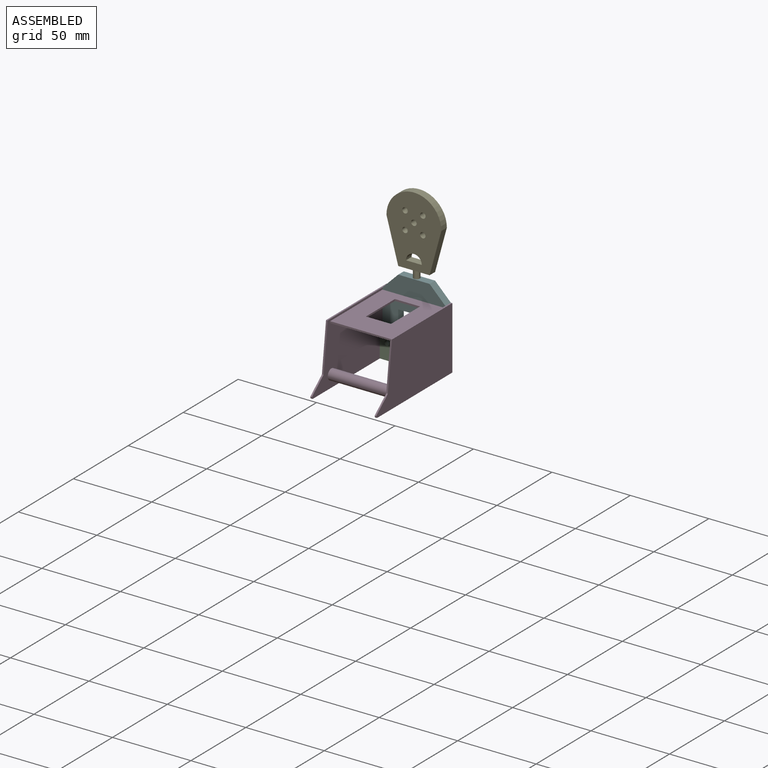
[diagram: assembled view]
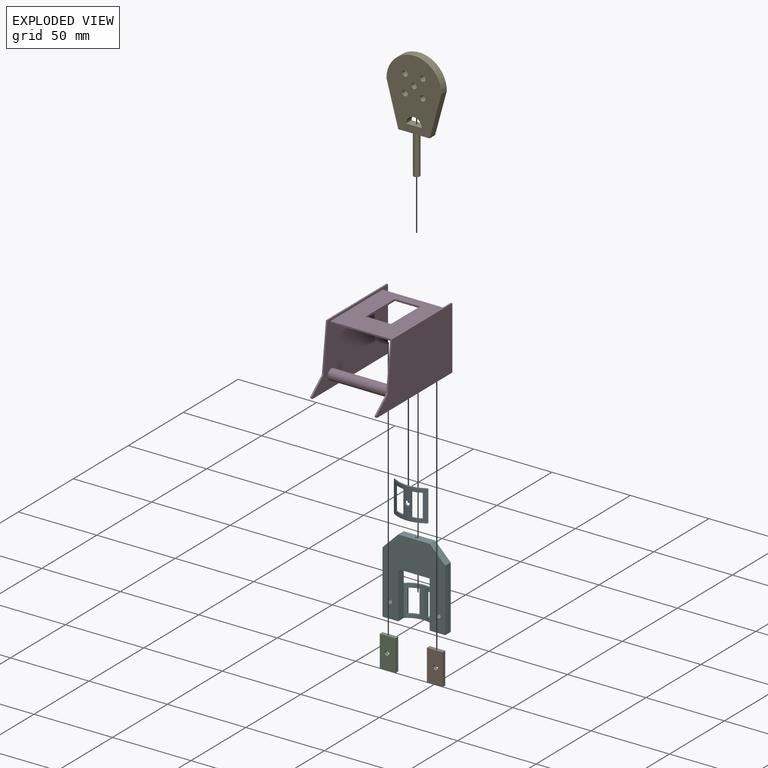
[diagram: exploded view]
GUIDED TOUR — MATED ASSEMBLY (Onshape document 92b7e8e0c719b06d1e1cc53a, AutoMate assembly 92b7e8e0c719b06d1e1cc53a_c6f3c71bdb5a36007f4f93a0_a0c2d64589d462c8a71cc433_default)

This assembly has 6 components, labeled P0..P5 below (a component is one placed occurrence of a part; the same part can appear more than once), held together by 5 mates. A mate is a constraint between two components; its type names the relative motion it leaves free:
  FASTENED — locks the two components together rigidly (no relative motion).
Axis/direction vectors are unit vectors and 'through' points are millimeter coordinates, both in the assembly's world frame.

MATES
  1. FASTENED "Fastened 2": P0 <-> P1, direction (0.000, 0.000, 1.000) through (-102.06, -53.67, 8.29) mm
  2. FASTENED "Fastened 5": P4 <-> P5, direction (0.000, 0.000, -1.000) through (-112.06, -48.67, 28.29) mm
  3. FASTENED "Fastened 3": P1 <-> P5, direction (0.000, 1.000, 0.000) through (-96.56, -51.17, 8.29) mm
  4. FASTENED "Fastened 1": P0 <-> P2, direction (0.000, 0.000, 1.000) through (-122.06, -53.67, 8.29) mm
  5. FASTENED "Fastened 4": P5 <-> P3, direction (0.000, 0.000, -1.000) through (-92.06, -46.17, 18.29) mm

ASSEMBLY ORDER
  1. P3 — the base component [order verified]
  2. P5 [order verified]
  3. P0 [order verified]
  4. P4 [order verified]
  5. P2 [order verified]
  6. P1 [order verified]
Order-tag legend:
  [order verified] — this step's position reverses a verified removal order: the component was checked to insert without passing through the ones already placed.

Of the 6 components, 1 carries the full construction recipe — the FeatureScript program that regenerates the part's solid from scratch; the rest are supplied as boundary geometry only.
Each toured component is shown spotlighted twice — in the assembled view, then in the exploded view, where a leader line traces a displaced component back to its assembled socket (saturated green if recipe-attached, orange if geometry-only; every other component desaturated gray) — followed by its recipe or geometry summary and the mates that hold it.
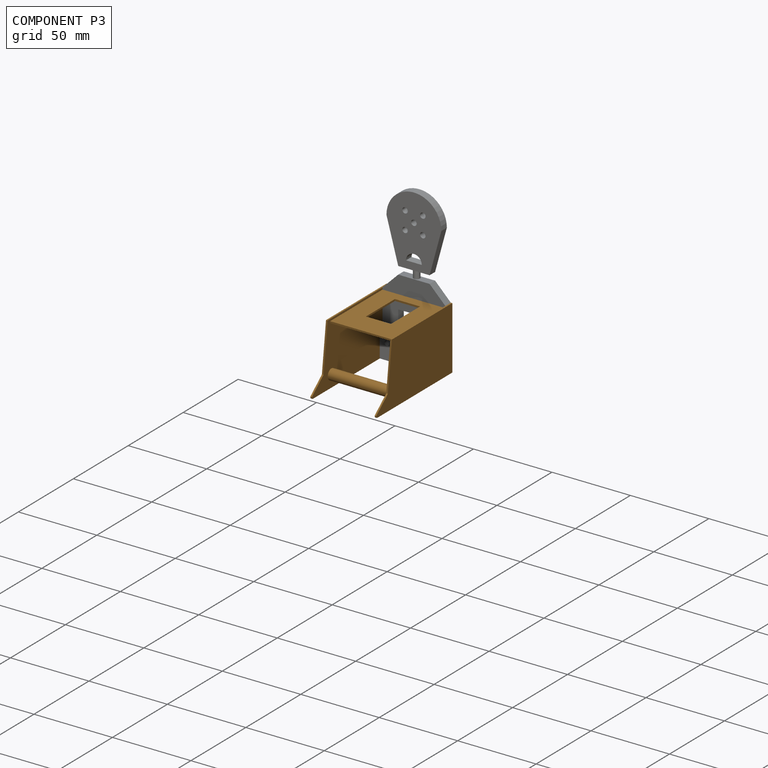
[diagram: component P3 — assembled]
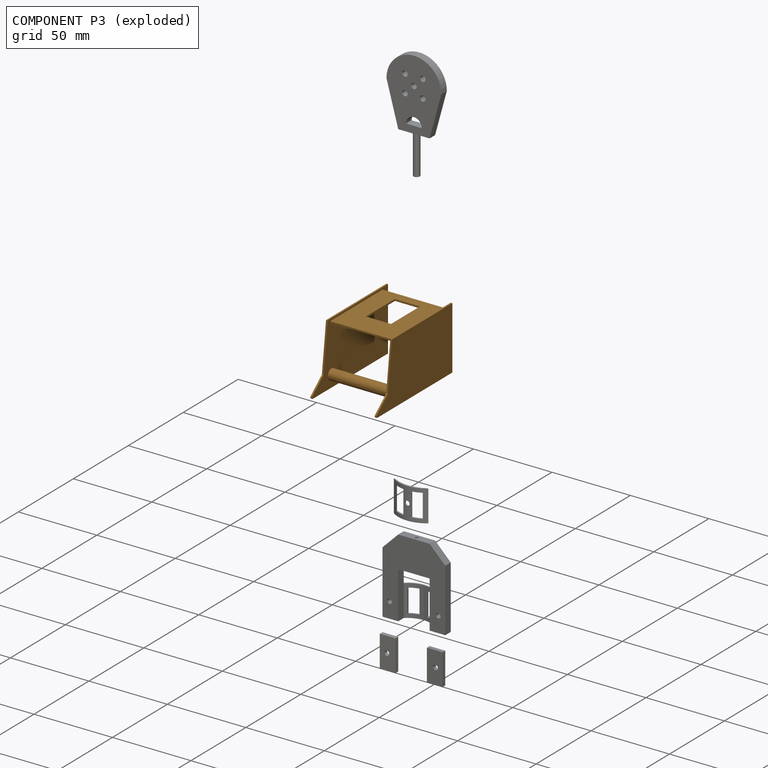
[diagram: component P3 — exploded]
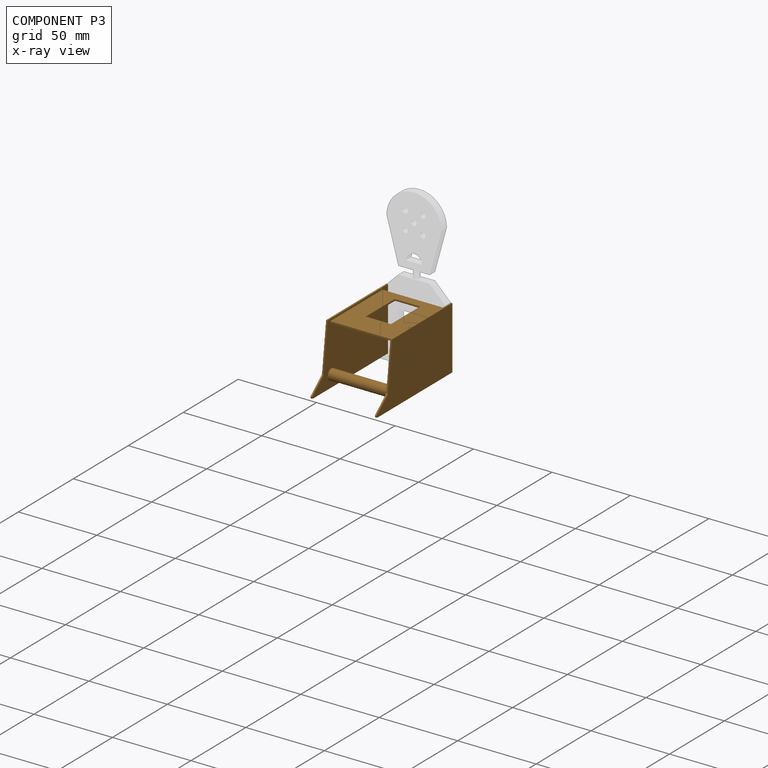
[diagram: component P3 — x-ray view]
COMPONENT P3 — geometry summary (no construction recipe available for this part):
  bounding box: 69.3 x 42.0 x 40.0 mm
  B-rep topology: 1 solid, 27 faces, 140 edges
  volume: 7765 mm^3 (7% of its bounding box)
  symmetry: mirror-symmetric across its y mid-plane
Held by: FASTENED mate "Fastened 4" to P5.
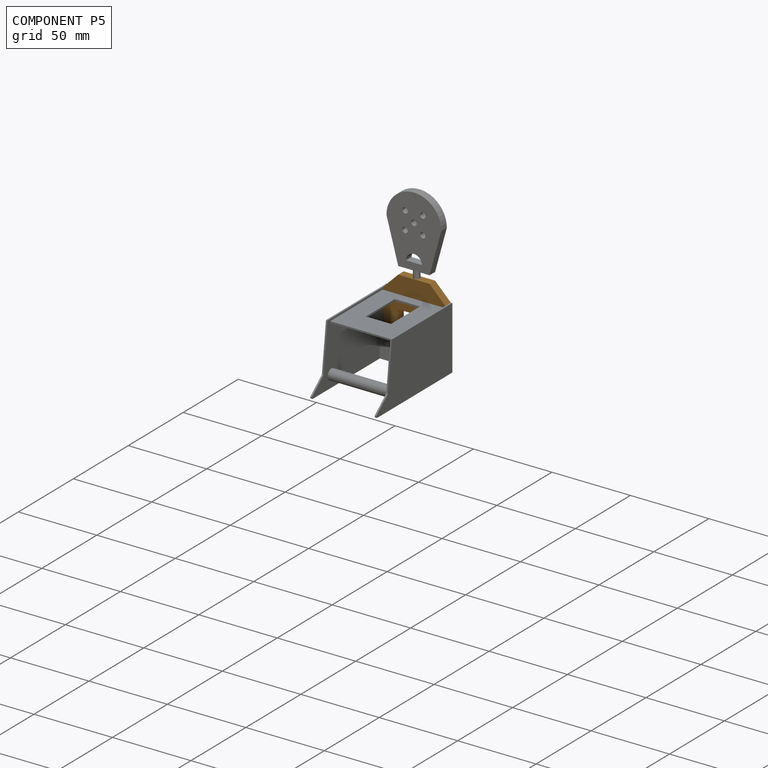
[diagram: component P5 — assembled]
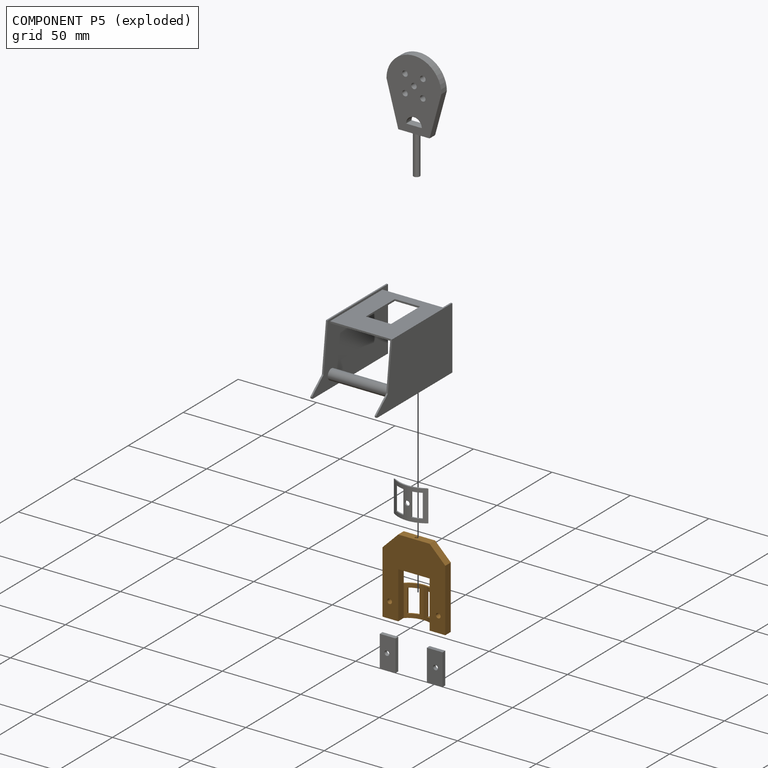
[diagram: component P5 — exploded]
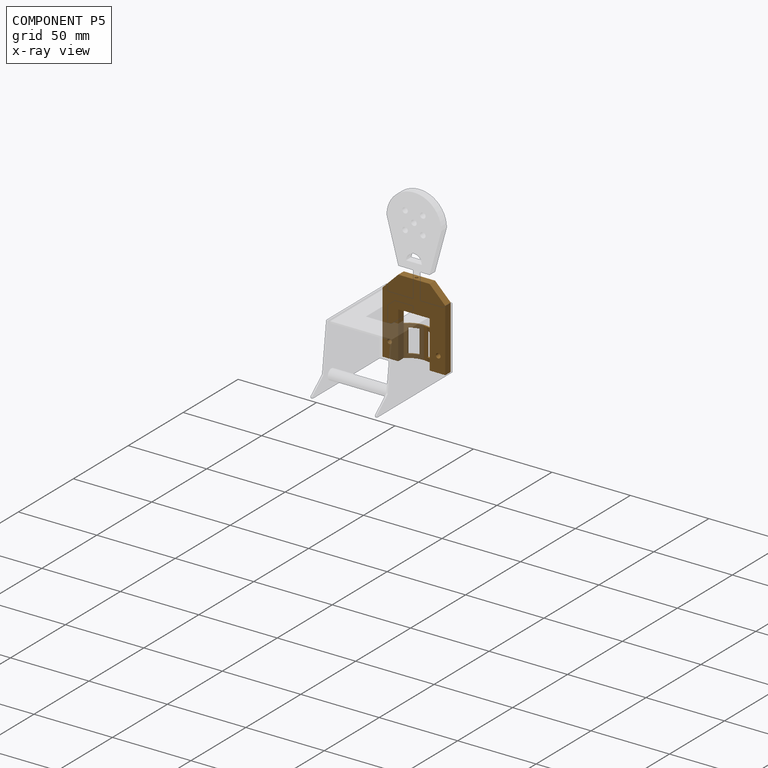
[diagram: component P5 — x-ray view]
COMPONENT P5 — geometry summary (no construction recipe available for this part):
  bounding box: 50.0 x 40.0 x 9.8 mm
  B-rep topology: 1 solid, 25 faces, 146 edges
  volume: 6606 mm^3 (34% of its bounding box)
  symmetry: mirror-symmetric across its x mid-plane
Held by: FASTENED mate "Fastened 5" to P4; FASTENED mate "Fastened 3" to P1; FASTENED mate "Fastened 4" to P3.
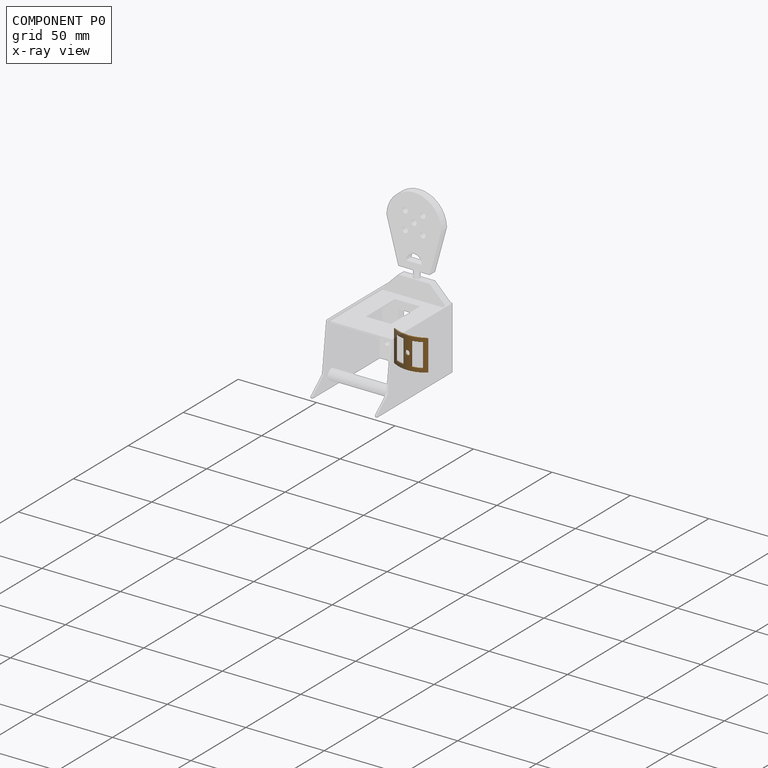
[diagram: component P0 — x-ray view]
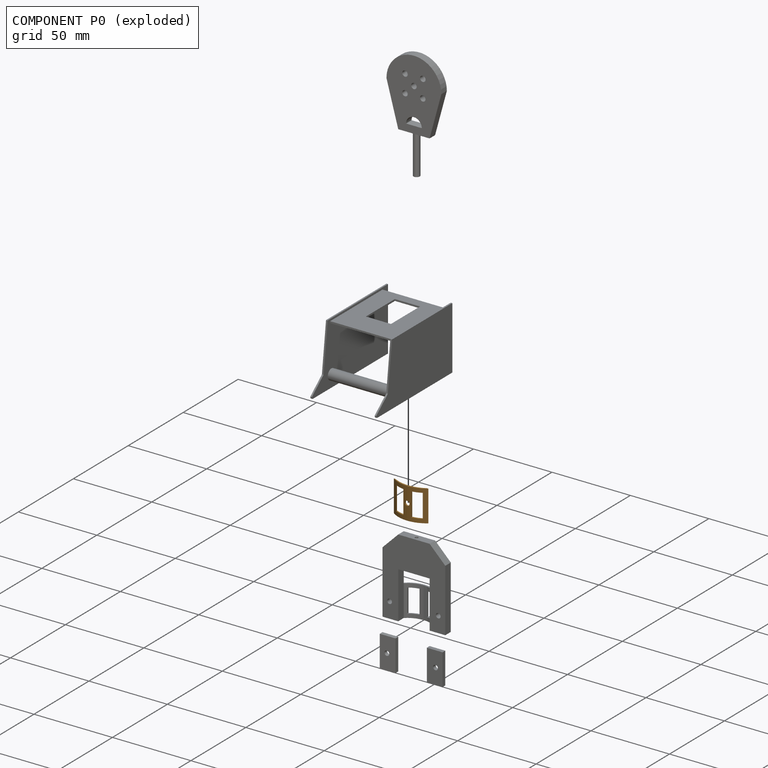
[diagram: component P0 — exploded]
COMPONENT P0 — geometry summary (no construction recipe available for this part):
  bounding box: 22.0 x 20.0 x 3.7 mm
  B-rep topology: 1 solid, 15 faces, 78 edges
  volume: 207 mm^3 (13% of its bounding box)
  symmetry: 2-fold rotationally symmetric about the y axis; mirror-symmetric across its x mid-plane, z mid-plane
Held by: FASTENED mate "Fastened 2" to P1; FASTENED mate "Fastened 1" to P2.
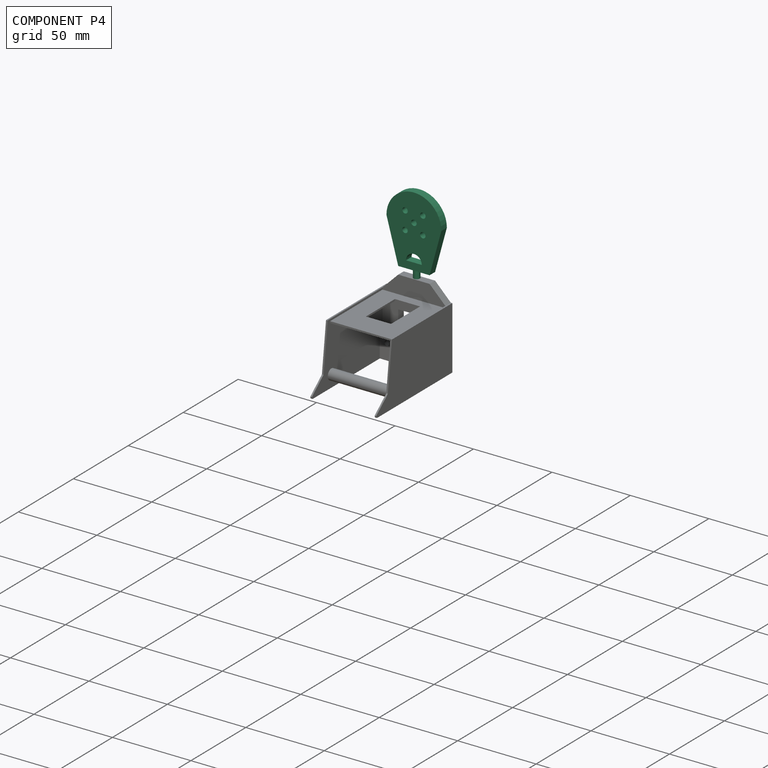
[diagram: component P4 — assembled]
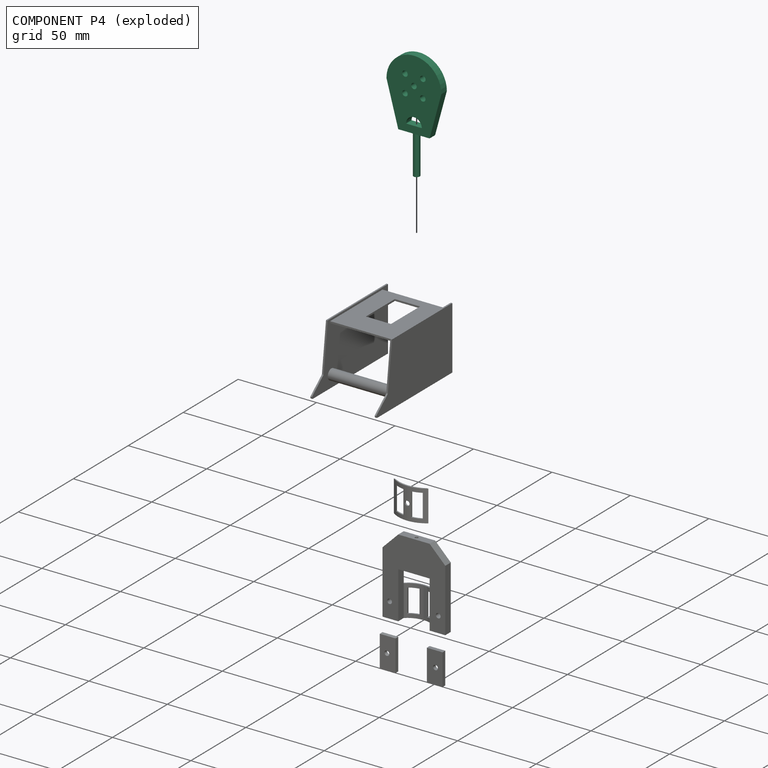
[diagram: component P4 — exploded]
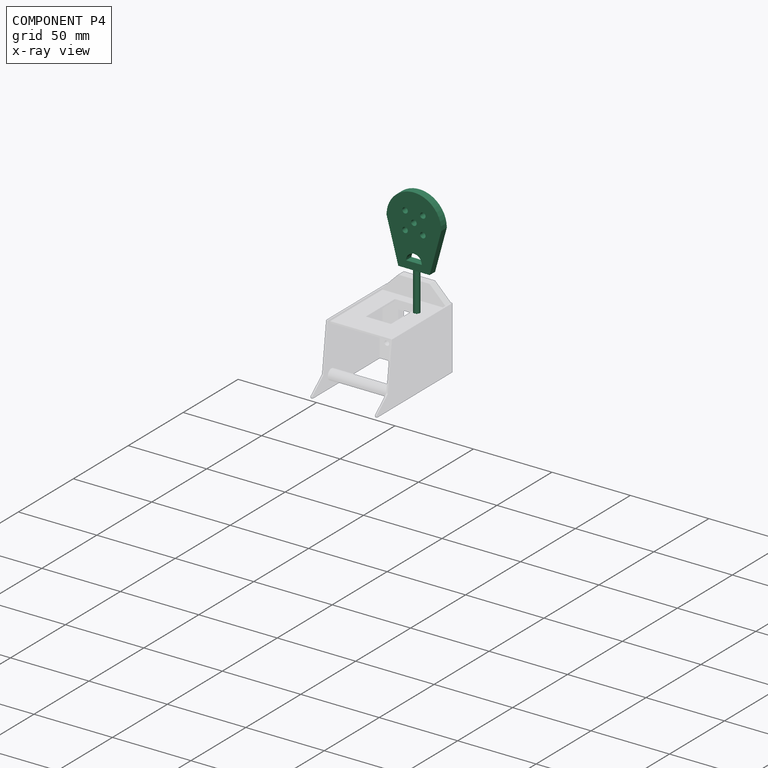
[diagram: component P4 — x-ray view]
COMPONENT P4 — recipe-attached (CADFS 00691300, mesh-verified: the recipe's output STEP matches this component's geometry to below the mesh-comparison resolution (tessellation chordal tolerance ~0.118 mm)).
Held by: FASTENED mate "Fastened 5" to P5.
Construction recipe (FeatureScript — the CAD program that rebuilds this solid; sketch coordinates are in the units given by the * unit suffixes, e.g. mm):

FeatureScript 1549;
import(path : "onshape/std/geometry.fs", version : "1549.0");
import(path : "onshape/std/common.fs", version : "1549.0");
const mm = millimeter;
const VERTEX = EntityType.VERTEX;
const EDGE = EntityType.EDGE;
const FACE = EntityType.FACE;
const BODY = EntityType.BODY;
function v(x, y){return vector(x, y);}
function OD(order){return orderDisambiguation(order);}
function OSD(set){return originalSetDisambiguation(set);}
function TD(topology){return topologyDisambiguation(topology);}
function TDD(query){return trueDependencyDisambiguation(query);}
function sQuery(a, b, c) {return sketchEntityQuery(a, b, c);}

annotation { "Feature Type Name" : "Feature", "Feature Type Description" : "" }
export const myFeature = defineFeature(function(context is Context, id is Id, definition is map)
    precondition{}
    {
        {
            var Q0;
            Q0=qCreatedBy(makeId("Top.planeOp"),FACE);
            var sketch = newSketch(context, id + "F0", { "sketchPlane" : qUnion([Q0])});
            skArc(sketch, "E0", {"start": v(-17.5, 0) * mm, "mid": v(0, -17.5) * mm, "end": v(17.5, 0) * mm});
            skLineSegment(sketch, "E1", {"start": v(-17.5, 0) * mm, "end": v(-10, 27.5) * mm});
            skLineSegment(sketch, "E2", {"start": v(10, 27.5) * mm, "end": v(17.5, 0) * mm});
            skLineSegment(sketch, "E3", {"start": v(-10, 27.5) * mm, "end": v(0, 27.5) * mm});
            skLineSegment(sketch, "E4", {"start": v(0, 27.5) * mm, "end": v(10, 27.5) * mm});
            skCircle(sketch, "E5", {"center": v(0, 0) * mm, "radius": 1.75 * mm});
            skCircle(sketch, "E6", {"center": v(5.66, 5.66) * mm, "radius": 1.75 * mm});
            skCircle(sketch, "E7.1.0", {"center": v(-5.66, 5.66) * mm, "radius": 1.75 * mm});
            skCircle(sketch, "E7.2.0", {"center": v(-5.66, -5.66) * mm, "radius": 1.75 * mm});
            skCircle(sketch, "E7.3.0", {"center": v(5.66, -5.66) * mm, "radius": 1.75 * mm});
            skLineSegment(sketch, "E8", {"start": v(0, 22.9) * mm, "end": v(5, 22.9) * mm});
            skLineSegment(sketch, "E9", {"start": v(0, 22.9) * mm, "end": v(-5, 22.9) * mm});
            skArc(sketch, "E10", {"start": v(-5, 22.9) * mm, "mid": v(0, 17.9) * mm, "end": v(5, 22.9) * mm});
            skSolve(sketch);
        }
        {
            var Q0;
            Q0=makeQuery(id+"F0.imprint","IMPRINT",FACE,{"disambiguationData":[TD([[makeQuery(id+"F0.imprint","IMPRINT",EDGE,{"derivedFrom":sQuery(id+"F0.wireOp",EDGE,"E0")}),1.0]])]});
            extrude(context, id + "F1", {"entities" : qUnion([Q0]), "depth" : 5 * mm, "offsetDistance" : 25 * mm});
        }
        {
            var Q0;
            Q0=makeQuery(id+"F1.opExtrude","SWEPT_FACE",FACE,{"disambiguationData":[OSD([sQuery(id+"F0.wireOp",EDGE,"E3"),sQuery(id+"F0.wireOp",EDGE,"E4")])]});
            var sketch = newSketch(context, id + "F2", { "sketchPlane" : qUnion([Q0])});
            skLineSegment(sketch, "E11", {"start": v(0, 0) * mm, "end": v(0, 5.49) * mm});
            skLineSegment(sketch, "E12", {"start": v(10, 2.5) * mm, "end": v(-10, 2.5) * mm});
            skCircle(sketch, "E13", {"center": v(0, 2.5) * mm, "radius": 2 * mm});
            skSolve(sketch);
        }
        {
            var Q0;
            Q0 = qSketchRegion(id + "F2", true);
            extrude(context, id + "F3", {"entities" : qUnion([Q0]), "operationType" : NewBodyOperationType.ADD, "depth" : 25 * mm, "offsetDistance" : 25 * mm});
        }
    });
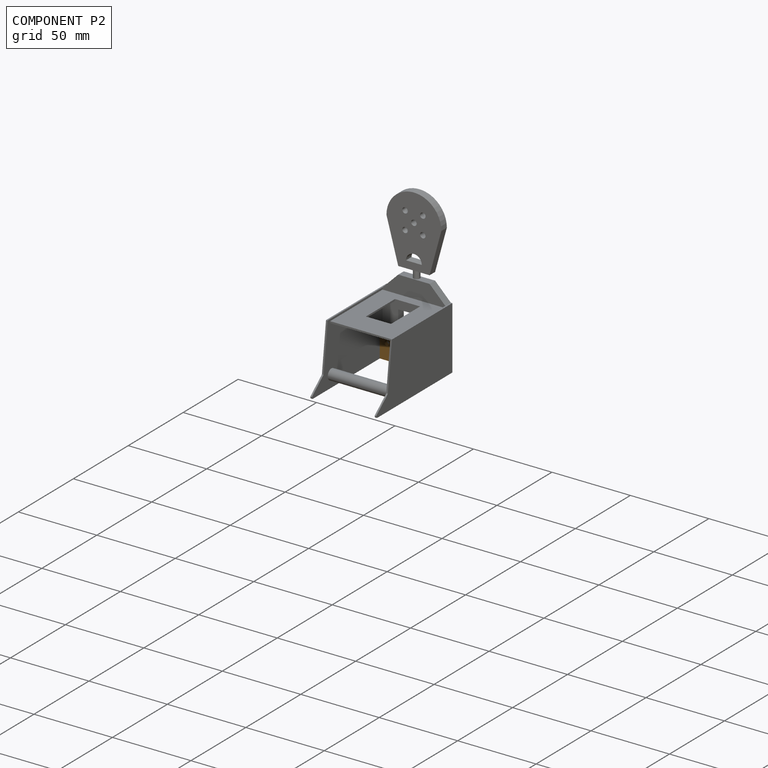
[diagram: component P2 — assembled]
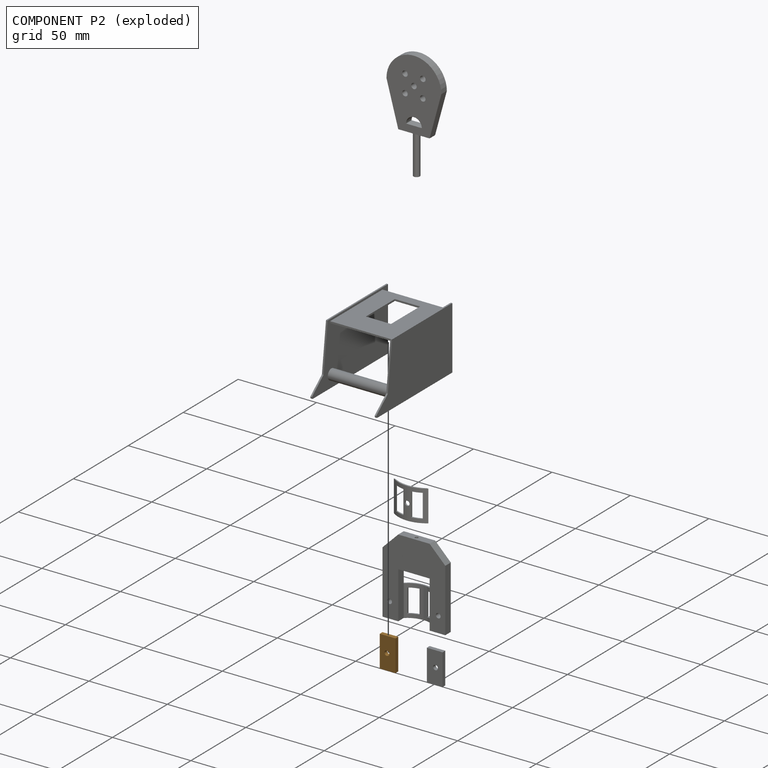
[diagram: component P2 — exploded]
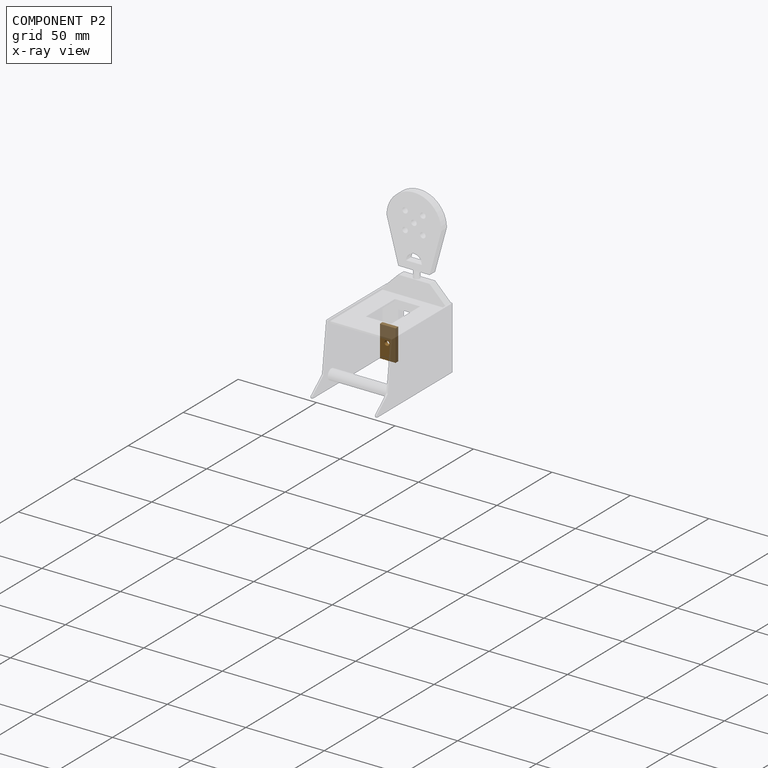
[diagram: component P2 — x-ray view]
COMPONENT P2 — geometry summary (no construction recipe available for this part):
  bounding box: 20.0 x 10.0 x 2.5 mm
  B-rep topology: 1 solid, 7 faces, 30 edges
  volume: 482 mm^3 (96% of its bounding box)
  symmetry: 2-fold rotationally symmetric about the x axis; mirror-symmetric across its y mid-plane, z mid-plane
Held by: FASTENED mate "Fastened 1" to P0.
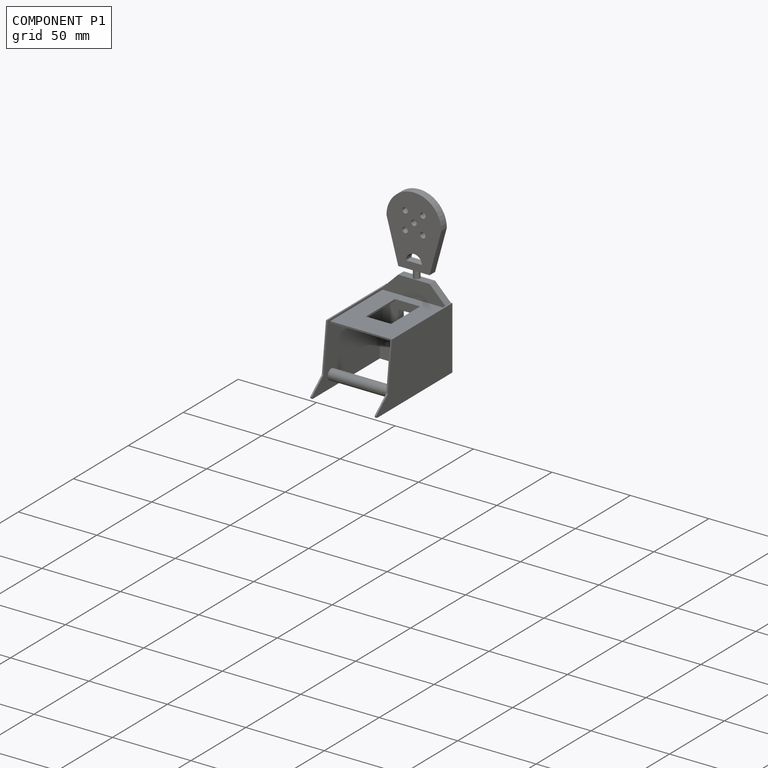
[diagram: component P1 — assembled]
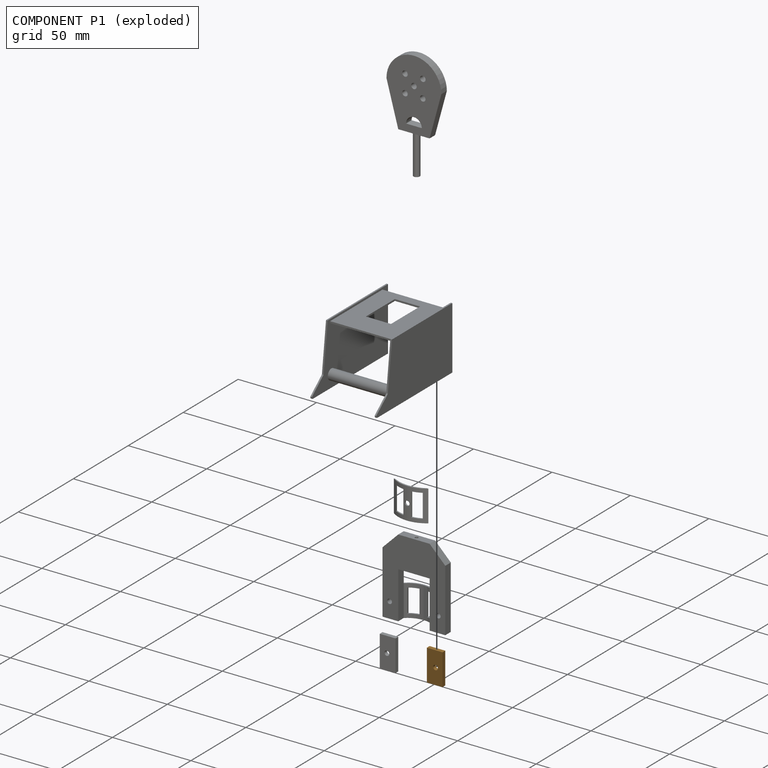
[diagram: component P1 — exploded]
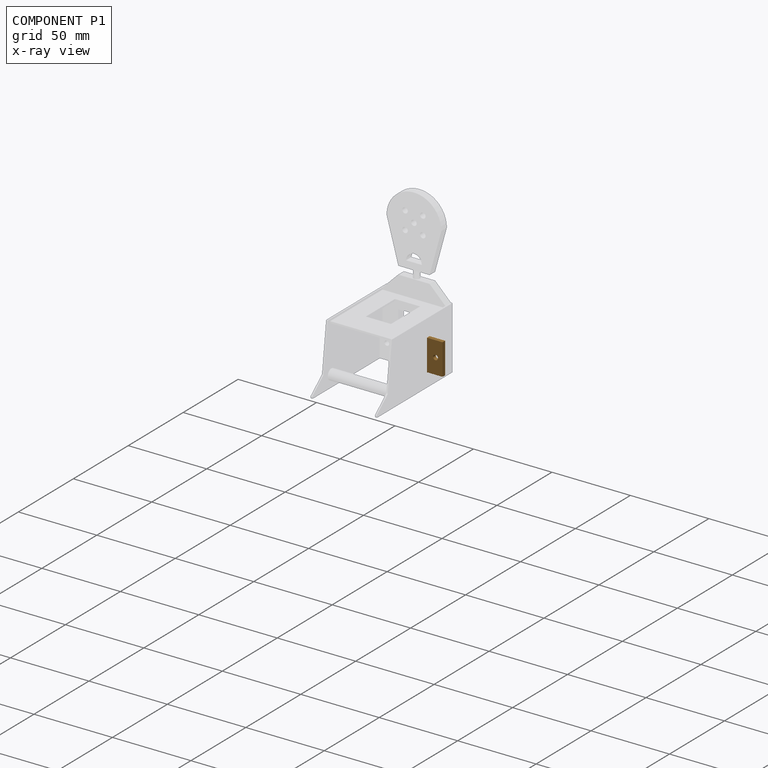
[diagram: component P1 — x-ray view]
COMPONENT P1 — geometry summary (no construction recipe available for this part):
  bounding box: 20.0 x 10.0 x 2.5 mm
  B-rep topology: 1 solid, 7 faces, 30 edges
  volume: 482 mm^3 (96% of its bounding box)
  symmetry: 2-fold rotationally symmetric about the x axis; mirror-symmetric across its y mid-plane, z mid-plane
Held by: FASTENED mate "Fastened 2" to P0; FASTENED mate "Fastened 3" to P5.
PROVENANCE & LICENSES
Assembly (occurrences, transforms, mates, per-part STEP geometry): AutoMate dataset, Zenodo record 7776208, CC0.
Construction recipes: CADFS (HuggingFace VladPyatov/CADFS, CC-BY-4.0, layered over the ABC dataset), FeatureScript reconstruction programs keyed by ABC model id.
Join: ABC meta listings map ABC model id -> Onshape documentId; within a shared document, parts are matched by geometric signature (bounding-box dims + volume at 0.1% relative tolerance, exact B-rep face/solid counts).
Verification: 1 of this assembly's 6 components carries a recipe attachment, and every attachment is mesh-verified: the CADFS STEP and the AutoMate member STEP were compared as meshes in their shared local frame (symmetric sampled-point-to-mesh distance); worst across the 1 attachment: below the mesh-comparison resolution (tessellation chordal tolerance ~0.118 mm) on a 78 mm part.
Renders: orthographic iso camera (az 35 / el 25); the floor grid conveys scale (grid pitch printed in each image; no ruler). In the exploded view each component is displaced by its stored offset vector: the offsets alone carry the explosion direction (mate normal/axis signs are not orientation cues and do not encode it), and separation distances are assigned per mate-chain, not proportionally to assembly-order depth.
